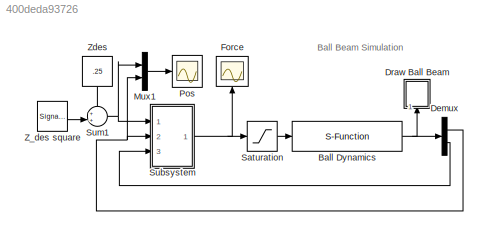
MODEL slx_400deda93726
KIND model
CONFIG AbsTol = auto
CONFIG EnableMultiTasking = on
CONFIG FixedStep = auto
CONFIG InitFcn = param
CONFIG MaxStep = auto
CONFIG MinStep = auto
CONFIG RelTol = 1e-3
CONFIG SampleTimeConstraint = Unconstrained
CONFIG Solver = ode45
CONFIG SolverName = ode45
CONFIG StartTime = 0.0
CONFIG StopTime = 1000
BLOCK [S-Function] Ball Dynamics
  EnableBusSupport = off
  FunctionName = ball_dynamics
  Parameters = P
  Ports = [1, 1]
  SFcnIsStateOwnerBlock = off
  SFunctionDeploymentMode = off
BLOCK [Demux] Demux
  DisplayOption = bar
  Outputs = 2
  Ports = [1, 2]
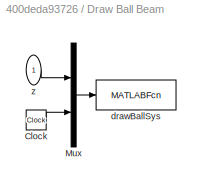
BLOCK [SubSystem] Draw Ball Beam
  Ports = [1]
  RequestExecContextInheritance = off
  Variant = off
BLOCK [Clock] Draw Ball Beam/Clock
BLOCK [Mux] Draw Ball Beam/Mux
  DisplayOption = bar
  Inputs = 2
  Ports = [2, 1]
BLOCK [MATLABFcn] Draw Ball Beam/drawBallSys
  MATLABFcn = drawBallSys(u)
  OutputDimensions = 0
  Ports = [1]
  SampleTime = .5
BLOCK [Inport] Draw Ball Beam/z
  IconDisplay = Port number
BLOCK [Scope] Force
  NumInputPorts = 1
  Ports = [1]
  ScopeSpecificationString = Simulink.scopes.TimeScopeBlockCfg('CurrentConfiguration', extmgr.ConfigurationSet(extmgr.Configuration('Core','General UI',true),extmgr.Configuration('Core','Source UI',true),extmgr.Configuration('Sources','WiredSimulink',true,'DataLoggingVariableName','ScopeData1'),extmgr.Configuration('Visuals','Time Domain',true,'SerializedDisplays',{struct('MinYLimReal','3.5704','MaxYLimReal','19.48223','YLabe...<+1424ch>
BLOCK [Mux] Mux1
  DisplayOption = bar
  Inputs = 2
  Ports = [2, 1]
BLOCK [Scope] Pos
  NumInputPorts = 1
  Ports = [1]
  ScopeSpecificationString = Simulink.scopes.TimeScopeBlockCfg('CurrentConfiguration', extmgr.ConfigurationSet(extmgr.Configuration('Core','General UI',true),extmgr.Configuration('Core','Source UI',true),extmgr.Configuration('Sources','WiredSimulink',true),extmgr.Configuration('Visuals','Time Domain',true,'SerializedDisplays',{struct('MinYLimReal','0.0515','MaxYLimReal','0.44861','YLabelReal','','MinYLimMag','0.0515','MaxYLim...<+1386ch>
BLOCK [Saturate] Saturation
  InputPortMap = u0
  LowerLimit = 0
  Ports = [1, 1]
  UpperLimit = 25
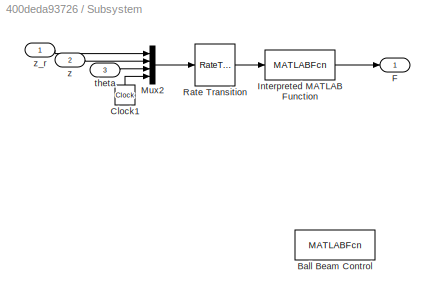
BLOCK [SubSystem] Subsystem
  Ports = [3, 1]
  RequestExecContextInheritance = off
  Variant = off
BLOCK [MATLABFcn] Subsystem/Ball Beam Control
  Commented = on
  MATLABFcn = ball_ctrl_state(u,P)
  OutputDimensions = 1
  Ports = [1, 1]
  SampleTime = .5
BLOCK [Clock] Subsystem/Clock1
BLOCK [Outport] Subsystem/F
  IconDisplay = Port number
BLOCK [MATLABFcn] Subsystem/Interpreted MATLAB Function
  MATLABFcn = ball_ctrl_state(u,P)
  OutputDimensions = 1
  Ports = [1, 1]
BLOCK [Mux] Subsystem/Mux2
  DisplayOption = bar
  Ports = [4, 1]
BLOCK [RateTransition] Subsystem/Rate Transition
  OutPortSampleTime = P.Ts
BLOCK [Inport] Subsystem/theta
  IconDisplay = Port number
  Port = 3
BLOCK [Inport] Subsystem/z
  IconDisplay = Port number
  Port = 2
BLOCK [Inport] Subsystem/z_r
  IconDisplay = Port number
BLOCK [Sum] Sum1
  IconShape = round
  InputSameDT = off
  Inputs = ++|
  OutDataTypeStr = Inherit: Inherit via internal rule
  Ports = [2, 1]
  SaturateOnIntegerOverflow = off
BLOCK [SignalGenerator] Z_des square
  Amplitude = .15
  Frequency = .5
  Ports = [0, 1]
  Units = rad/sec
  WaveForm = square
BLOCK [Constant] Zdes
  Value = .25
ANNOTATION (root): Ball Beam Simulation
NET Ball Dynamics:1 -> Demux:1, Draw Ball Beam:1
NET Demux:1 -> Mux1:2, Subsystem:2
LINE Demux:2 -> Subsystem:3
LINE Draw Ball Beam/Clock:1 -> Draw Ball Beam/Mux:2
LINE Draw Ball Beam/Mux:1 -> Draw Ball Beam/drawBallSys:1
LINE Draw Ball Beam/z:1 -> Draw Ball Beam/Mux:1
LINE Mux1:1 -> Pos:1
LINE Saturation:1 -> Ball Dynamics:1
LINE Subsystem/Clock1:1 -> Subsystem/Mux2:4
LINE Subsystem/Interpreted MATLAB Function:1 -> Subsystem/F:1
LINE Subsystem/Mux2:1 -> Subsystem/Rate Transition:1
LINE Subsystem/Rate Transition:1 -> Subsystem/Interpreted MATLAB Function:1
LINE Subsystem/theta:1 -> Subsystem/Mux2:3
LINE Subsystem/z:1 -> Subsystem/Mux2:2
LINE Subsystem/z_r:1 -> Subsystem/Mux2:1
NET Subsystem:1 -> Force:1, Saturation:1
NET Sum1:1 -> Mux1:1, Subsystem:1
LINE Z_des square:1 -> Sum1:2
LINE Zdes:1 -> Sum1:1
note: NET lines group one-source signal fan-out (src -> all destinations, sorted); 1:1 wires keep LINE
